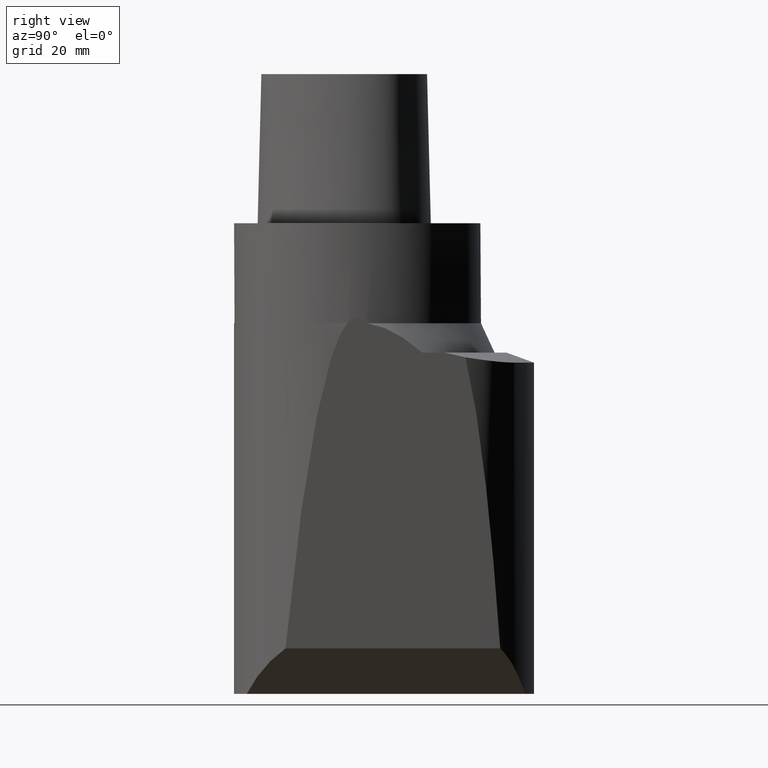
[diagram: clean part render]
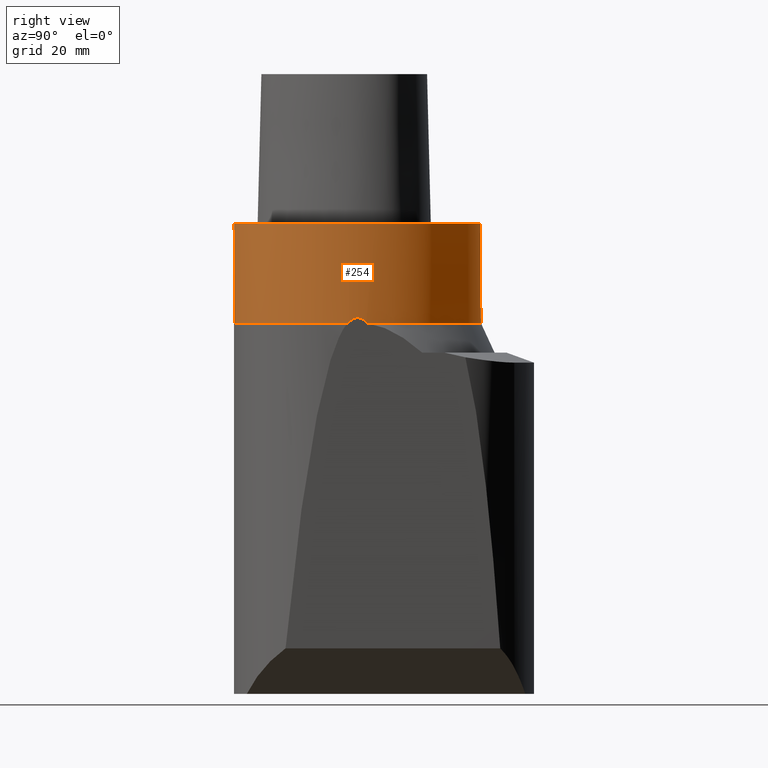
[diagram: same view with one face highlighted and labeled with its STEP entity id]
A machine part, right view. The second image highlights one B-rep face of the part: STEP entity #254.
In plain terms, the highlighted cylindrical surface (bore or boss wall) has radius 31.4925 mm, axis along (-0, 0, -1).
Its self-contained STEP definition (entity closure, byte-faithful):
#141=EDGE_CURVE('240[2]',#373,#374,#375,.T.);
#190=EDGE_CURVE('240[2]',#441,#441,#442,.T.);
#192=EDGE_CURVE('240[2]',#444,#445,#446,.T.);
#224=EDGE_CURVE('240[2]',#374,#469,#485,.T.);
#246=EDGE_CURVE('240[2]',#512,#373,#513,.T.);
#254=ADVANCED_FACE('240[2]',(#522,#523),#524,.T.);
#260=EDGE_CURVE('240[2]',#445,#512,#530,.T.);
#300=EDGE_CURVE('240[2]',#469,#444,#577,.T.);
#373=VERTEX_POINT('',#674);
#374=VERTEX_POINT('',#675);
#375=CIRCLE('',#676,31.4925000000001);
#441=VERTEX_POINT('',#804);
#442=CIRCLE('',#805,31.4925000000003);
#444=VERTEX_POINT('',#808);
#445=VERTEX_POINT('',#809);
#446=LINE('',#810,#811);
#469=VERTEX_POINT('',#871);
#485=ELLIPSE('',#913,451.463474422735,31.4925000000003);
#512=VERTEX_POINT('',#1037);
#513=LINE('',#1038,#1039);
#522=FACE_BOUND('',#1064,.T.);
#523=FACE_BOUND('',#1065,.T.);
#524=CYLINDRICAL_SURFACE('',#1066,31.4925000000003);
#530=CIRCLE('',#1077,31.4925);
#577=CIRCLE('',#1229,31.4925000000001);
#674=CARTESIAN_POINT('',(-2.6371566352526,-29.3818890625015,-25.4973260183548));
#675=CARTESIAN_POINT('',(31.3952967521694,-0.472427570875685,-25.4973260183546));
#676=AXIS2_PLACEMENT_3D('',#1283,#1284,#1285);
#804=CARTESIAN_POINT('',(-31.4925,2.00000000000017,-5.6843418860808E-014));
#805=AXIS2_PLACEMENT_3D('',#1339,#1340,#1341);
#808=CARTESIAN_POINT('',(-29.4999999999997,13.0239537485437,-25.4973260183546));
#809=CARTESIAN_POINT('',(-29.4999999999997,13.0239537485433,-22.0000000000001));
#810=CARTESIAN_POINT('',(-29.4999999999997,13.023953748544,-12.7486630091773));
#811=VECTOR('',#1342,1.0);
#871=CARTESIAN_POINT('',(31.3952967521694,4.47242757087619,-25.4973260183546));
#913=AXIS2_PLACEMENT_3D('',#1391,#1392,#1393);
#1037=CARTESIAN_POINT('',(-2.63715663526344,-29.3818890625002,-22.0000000000001));
#1038=CARTESIAN_POINT('',(-2.63715663536174,-29.3818890624915,-277.139999808572));
#1039=VECTOR('',#1437,1.0);
#1064=EDGE_LOOP('',(#1447,#1448,#1449,#1450,#1451,#1452));
#1065=EDGE_LOOP('',(#1453));
#1066=AXIS2_PLACEMENT_3D('',#1454,#1455,#1456);
#1077=AXIS2_PLACEMENT_3D('',#1459,#1460,#1461);
#1229=AXIS2_PLACEMENT_3D('',#1530,#1531,#1532);
#1283=CARTESIAN_POINT('',(-1.31633157493022E-015,2.00000000000026,-25.4973260183546));
#1284=DIRECTION('',(6.12323399573674E-017,-2.95655383322482E-015,1.0));
#1285=DIRECTION('',(1.22464679914735E-016,1.0,2.95655383322482E-015));
#1339=CARTESIAN_POINT('',(2.44929359829488E-016,2.00000000000017,-5.6843418860808E-014));
#1340=DIRECTION('',(6.12323399573674E-017,-2.95655383322482E-015,1.0));
#1341=DIRECTION('',(1.22464679914735E-016,1.0,2.95655383322482E-015));
#1342=DIRECTION('',(6.12323399573673E-017,-2.95655383322482E-015,1.0));
#1391=CARTESIAN_POINT('',(-2.88080394100352E-014,2.00000000000156,-474.470986901574));
#1392=DIRECTION('',(-0.997564050259824,1.30709066338571E-016,0.0697564737441235));
#1393=DIRECTION('',(-0.0697564737441235,2.95789452091202E-015,-0.997564050259824));
#1437=DIRECTION('',(-6.12323399573677E-017,-1.22464679914735E-016,-1.0));
#1447=ORIENTED_EDGE('',*,*,#260,.T.);
#1448=ORIENTED_EDGE('',*,*,#246,.T.);
#1449=ORIENTED_EDGE('',*,*,#141,.T.);
#1450=ORIENTED_EDGE('',*,*,#224,.T.);
#1451=ORIENTED_EDGE('',*,*,#300,.T.);
#1452=ORIENTED_EDGE('',*,*,#192,.T.);
#1453=ORIENTED_EDGE('',*,*,#190,.F.);
#1454=CARTESIAN_POINT('',(-5.35701107550369E-016,2.0000000000002,-12.7486630091773));
#1455=DIRECTION('',(-6.12323399573674E-017,2.95655383322482E-015,-1.0));
#1456=DIRECTION('',(1.22464679914735E-016,1.0,2.95655383322482E-015));
#1459=CARTESIAN_POINT('',(2.44929359829488E-016,2.00000000000017,-22.0000000000001));
#1460=DIRECTION('',(0.0,0.0,1.0));
#1461=DIRECTION('',(-1.0,1.22464679914735E-016,0.0));
#1530=CARTESIAN_POINT('',(-1.31633157493022E-015,2.00000000000026,-25.4973260183546));
#1531=DIRECTION('',(6.12323399573674E-017,-2.95655383322482E-015,1.0));
#1532=DIRECTION('',(1.22464679914735E-016,1.0,2.95655383322482E-015));